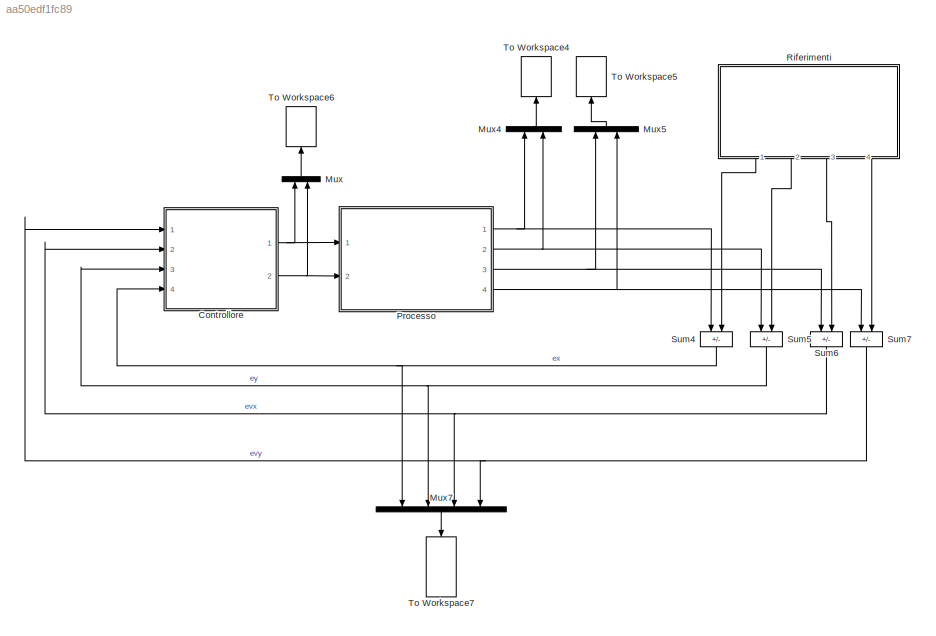
MODEL slx_aa50edf1fc89
KIND model
CONFIG AbsTol = auto
CONFIG EnableMultiTasking = off
CONFIG FixedStep = 1e-3
CONFIG MaxStep = auto
CONFIG MinStep = auto
CONFIG RelTol = 1e-3
CONFIG SampleTimeConstraint = Unconstrained
CONFIG SolverName = FixedStepAuto
CONFIG StartTime = 0.0
CONFIG StopTime = 10.0
WORKSPACE source: mxarray member
WORKSPACE Fa = 500
WORKSPACE Kd = 1200
WORKSPACE Kdomega = 1000
WORKSPACE Kp = 360000
WORKSPACE Kptheta = 250000
WORKSPACE alphap = [-0.326020218955 -0.326023653055 -0.163018777365 -8.60811685263e-06 -6.53899136427e-06 -6.42939276158e-06 -6.73171916785e-06 -7.19217855163e-06 -7.75235029274e-06 -8.39816672132e-06 -9.12997590916e-06 -9.95451750754e-06 ... (306 elements, 1x306)]
WORKSPACE axp = [-2688 -2588.16 -2488.32 -2388.48 -2288.64 -2188.8 -2088.96 -1989.12 -1889.28 -1789.44 -1689.6 -1589.76 ... (357 elements, 1x357)]
WORKSPACE ayp = [-1384 -1331.2 -1278.4 -1225.6 -1172.8 -1120 -1067.2 -1014.4 -961.6 -908.8 -856 -803.2 ... (357 elements, 1x357)]
WORKSPACE inertia = 6.4e-05
WORKSPACE mass = 0.02
WORKSPACE omega0 = 0.65196059971
WORKSPACE omegap = [0.65196059971 0.325940380755 -8.67063996801e-05 -9.71739757485e-05 -0.000103922633385 -0.000110251958477 -0.000116781418909 -0.000123715396813 -0.000131165776012 -0.000139220097398 -0.000147962109454 -0.000157480049217 ... (306 elements, 1x306)]
WORKSPACE step = 0.01
WORKSPACE theta0 = 0
WORKSPACE thetap = [0 0.65196059971 0.651880761509 0.65178718691 0.651686413558 0.651579341644 0.651465909641 0.651345778806 0.651218478847 0.651083447254 0.650940038652 0.650787523035 ... (306 elements, 1x306)]
WORKSPACE v0x = 0
WORKSPACE v0y = 0
WORKSPACE vxp = [0 -26.3808 -51.7632 -76.1472 -99.5328 -121.92 -143.3088 -163.6992 -183.0912 -201.4848 -218.88 -235.2768 ... (357 elements, 1x357)]
WORKSPACE vyp = [0 -13.576 -26.624 -39.144 -51.136 -62.6 -73.536 -83.944 -93.824 -103.176 -112 -120.296 ... (357 elements, 1x357)]
WORKSPACE x0 = 384
WORKSPACE xp = [384 383.93168 383.73024 383.40096 382.94912 382.38 381.69888 380.91104 380.02176 379.03632 377.96 376.79808 ... (357 elements, 1x357)]
WORKSPACE y0 = 384
WORKSPACE yp = [384 383.867264 383.475712 382.835328 381.956096 380.848 379.521024 377.985152 376.250368 374.326656 372.224 369.952384 ... (357 elements, 1x357)]
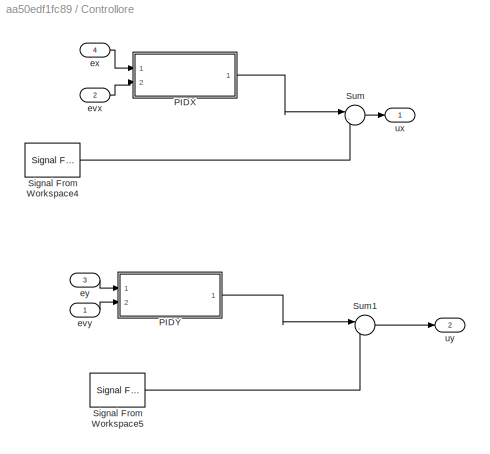
BLOCK [SubSystem] Controllore
  Ports = [4, 2]
  RequestExecContextInheritance = off
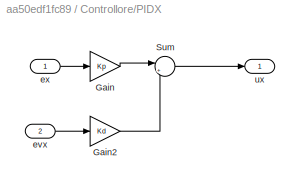
BLOCK [SubSystem] Controllore/PIDX
  Ports = [2, 1]
  RequestExecContextInheritance = off
BLOCK [Gain] Controllore/PIDX/Gain
  Gain = Kp
BLOCK [Gain] Controllore/PIDX/Gain2
  Gain = Kd
BLOCK [Sum] Controllore/PIDX/Sum
  Inputs = |++
  Ports = [2, 1]
BLOCK [Inport] Controllore/PIDX/evx
  Port = 2
BLOCK [Inport] Controllore/PIDX/ex
BLOCK [Outport] Controllore/PIDX/ux
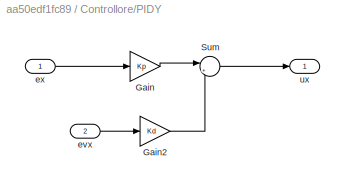
BLOCK [SubSystem] Controllore/PIDY
  Ports = [2, 1]
  RequestExecContextInheritance = off
BLOCK [Gain] Controllore/PIDY/Gain
  Gain = Kp
BLOCK [Gain] Controllore/PIDY/Gain2
  Gain = Kd
BLOCK [Sum] Controllore/PIDY/Sum
  Inputs = |++
  Ports = [2, 1]
BLOCK [Inport] Controllore/PIDY/evx
  Port = 2
BLOCK [Inport] Controllore/PIDY/ex
BLOCK [Outport] Controllore/PIDY/ux
BLOCK [Reference] Controllore/Signal From Workspace4  REF=dspsrcs4/Signal From
Workspace
  Ports = [0, 1]
  SourceBlock = dspsrcs4/Signal From\nWorkspace
  SourceProductBaseCode = DS
  SourceType = Signal From Workspace
BLOCK [Reference] Controllore/Signal From Workspace5  REF=dspsrcs4/Signal From
Workspace
  Ports = [0, 1]
  SourceBlock = dspsrcs4/Signal From\nWorkspace
  SourceProductBaseCode = DS
  SourceType = Signal From Workspace
BLOCK [Sum] Controllore/Sum
  Inputs = |-+
  Ports = [2, 1]
BLOCK [Sum] Controllore/Sum1
  Inputs = |-+
  Ports = [2, 1]
BLOCK [Inport] Controllore/evx
  Port = 2
BLOCK [Inport] Controllore/evy
BLOCK [Inport] Controllore/ex
  Port = 4
BLOCK [Inport] Controllore/ey
  Port = 3
BLOCK [Outport] Controllore/ux
BLOCK [Outport] Controllore/uy
  Port = 2
BLOCK [Mux] Mux
  DisplayOption = bar
  Inputs = 2
  NameLocation = right
  Ports = [2, 1]
BLOCK [Mux] Mux4
  DisplayOption = bar
  Inputs = 2
  NameLocation = right
  Ports = [2, 1]
BLOCK [Mux] Mux5
  DisplayOption = bar
  Inputs = 2
  NameLocation = right
  Ports = [2, 1]
BLOCK [Mux] Mux7
  DisplayOption = bar
  NameLocation = left
  Ports = [4, 1]
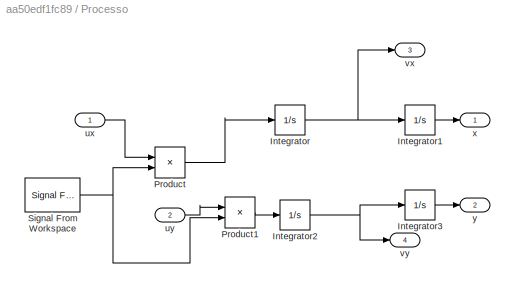
BLOCK [SubSystem] Processo
  Ports = [2, 4]
  RequestExecContextInheritance = off
BLOCK [Integrator] Processo/Integrator
  InitialCondition = v0x
  Ports = [1, 1]
BLOCK [Integrator] Processo/Integrator1
  InitialCondition = x0
  Ports = [1, 1]
BLOCK [Integrator] Processo/Integrator2
  InitialCondition = v0y
  LowerSaturationLimit = -10
  Ports = [1, 1]
  UpperSaturationLimit = 10
BLOCK [Integrator] Processo/Integrator3
  InitialCondition = y0
  Ports = [1, 1]
BLOCK [Product] Processo/Product
  Ports = [2, 1]
BLOCK [Product] Processo/Product1
  Ports = [2, 1]
BLOCK [Reference] Processo/Signal From Workspace  REF=dspsrcs4/Signal From
Workspace
  Ports = [0, 1]
  SourceBlock = dspsrcs4/Signal From\nWorkspace
  SourceProductBaseCode = DS
  SourceType = Signal From Workspace
BLOCK [Inport] Processo/ux
BLOCK [Inport] Processo/uy
  Port = 2
BLOCK [Outport] Processo/vx
  Port = 3
BLOCK [Outport] Processo/vy
  Port = 4
BLOCK [Outport] Processo/x
  PortDimensions = 1
BLOCK [Outport] Processo/y
  Port = 2
  PortDimensions = 1
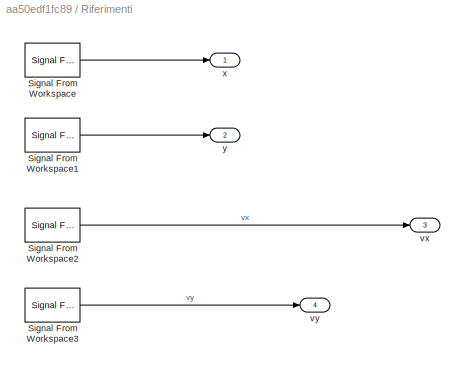
BLOCK [SubSystem] Riferimenti
  NameLocation = left
  Ports = [0, 4]
  RequestExecContextInheritance = off
BLOCK [Reference] Riferimenti/Signal From Workspace  REF=dspsrcs4/Signal From
Workspace
  Ports = [0, 1]
  SourceBlock = dspsrcs4/Signal From\nWorkspace
  SourceProductBaseCode = DS
  SourceType = Signal From Workspace
BLOCK [Reference] Riferimenti/Signal From Workspace1  REF=dspsrcs4/Signal From
Workspace
  Ports = [0, 1]
  SourceBlock = dspsrcs4/Signal From\nWorkspace
  SourceProductBaseCode = DS
  SourceType = Signal From Workspace
BLOCK [Reference] Riferimenti/Signal From Workspace2  REF=dspsrcs4/Signal From
Workspace
  Ports = [0, 1]
  SourceBlock = dspsrcs4/Signal From\nWorkspace
  SourceProductBaseCode = DS
  SourceType = Signal From Workspace
BLOCK [Reference] Riferimenti/Signal From Workspace3  REF=dspsrcs4/Signal From
Workspace
  Ports = [0, 1]
  SourceBlock = dspsrcs4/Signal From\nWorkspace
  SourceProductBaseCode = DS
  SourceType = Signal From Workspace
BLOCK [Outport] Riferimenti/vx
  Port = 3
BLOCK [Outport] Riferimenti/vy
  Port = 4
BLOCK [Outport] Riferimenti/x
BLOCK [Outport] Riferimenti/y
  Port = 2
BLOCK [Sum] Sum4
  IconShape = rectangular
  Inputs = |+-
  NameLocation = left
  Ports = [2, 1]
BLOCK [Sum] Sum5
  IconShape = rectangular
  Inputs = |+-
  NameLocation = left
  Ports = [2, 1]
BLOCK [Sum] Sum6
  IconShape = rectangular
  Inputs = |+-
  NameLocation = left
  Ports = [2, 1]
BLOCK [Sum] Sum7
  IconShape = rectangular
  Inputs = |+-
  NameLocation = left
  Ports = [2, 1]
BLOCK [ToWorkspace] To Workspace4
  FixptAsFi = on
  MaxDataPoints = inf
  NameLocation = right
  Ports = [1]
  SampleTime = -1
  VariableName = p
BLOCK [ToWorkspace] To Workspace5
  FixptAsFi = on
  MaxDataPoints = inf
  NameLocation = right
  Ports = [1]
  SampleTime = -1
  Save2DSignal = 2-D array (concatenate along first dimension)
  VariableName = v
BLOCK [ToWorkspace] To Workspace6
  FixptAsFi = on
  MaxDataPoints = inf
  NameLocation = right
  Ports = [1]
  SampleTime = -1
  VariableName = a
BLOCK [ToWorkspace] To Workspace7
  FixptAsFi = on
  MaxDataPoints = inf
  NameLocation = left
  Ports = [1]
  SampleTime = -1
  VariableName = e
LINE Controllore/PIDX/Gain2:1 -> Controllore/PIDX/Sum:2
LINE Controllore/PIDX/Gain:1 -> Controllore/PIDX/Sum:1
LINE Controllore/PIDX/Sum:1 -> Controllore/PIDX/ux:1
LINE Controllore/PIDX/evx:1 -> Controllore/PIDX/Gain2:1
LINE Controllore/PIDX/ex:1 -> Controllore/PIDX/Gain:1
LINE Controllore/PIDX:1 -> Controllore/Sum:1
LINE Controllore/PIDY/Gain2:1 -> Controllore/PIDY/Sum:2
LINE Controllore/PIDY/Gain:1 -> Controllore/PIDY/Sum:1
LINE Controllore/PIDY/Sum:1 -> Controllore/PIDY/ux:1
LINE Controllore/PIDY/evx:1 -> Controllore/PIDY/Gain2:1
LINE Controllore/PIDY/ex:1 -> Controllore/PIDY/Gain:1
LINE Controllore/PIDY:1 -> Controllore/Sum1:1
LINE Controllore/Signal From Workspace4:1 -> Controllore/Sum:2
LINE Controllore/Signal From Workspace5:1 -> Controllore/Sum1:2
LINE Controllore/Sum1:1 -> Controllore/uy:1
LINE Controllore/Sum:1 -> Controllore/ux:1
LINE Controllore/evx:1 -> Controllore/PIDX:2
LINE Controllore/evy:1 -> Controllore/PIDY:2
LINE Controllore/ex:1 -> Controllore/PIDX:1
LINE Controllore/ey:1 -> Controllore/PIDY:1
NET Controllore:1 -> Mux:1, Processo:1
NET Controllore:2 -> Mux:2, Processo:2
LINE Mux4:1 -> To Workspace4:1
LINE Mux5:1 -> To Workspace5:1
LINE Mux7:1 -> To Workspace7:1
LINE Mux:1 -> To Workspace6:1
LINE Processo/Integrator1:1 -> Processo/x:1
NET Processo/Integrator2:1 -> Processo/Integrator3:1, Processo/vy:1
LINE Processo/Integrator3:1 -> Processo/y:1
NET Processo/Integrator:1 -> Processo/Integrator1:1, Processo/vx:1
LINE Processo/Product1:1 -> Processo/Integrator2:1
LINE Processo/Product:1 -> Processo/Integrator:1
NET Processo/Signal From Workspace:1 -> Processo/Product1:2, Processo/Product:2
LINE Processo/ux:1 -> Processo/Product:1
LINE Processo/uy:1 -> Processo/Product1:1
NET Processo:1 -> Mux4:1, Sum4:1
NET Processo:2 -> Mux4:2, Sum5:1
NET Processo:3 -> Mux5:1, Sum6:1
NET Processo:4 -> Mux5:2, Sum7:1
LINE Riferimenti/Signal From Workspace1:1 -> Riferimenti/y:1
LINE Riferimenti/Signal From Workspace2:1 -> Riferimenti/vx:1
LINE Riferimenti/Signal From Workspace3:1 -> Riferimenti/vy:1
LINE Riferimenti/Signal From Workspace:1 -> Riferimenti/x:1
LINE Riferimenti:1 -> Sum4:2
LINE Riferimenti:2 -> Sum5:2
LINE Riferimenti:3 -> Sum6:2
LINE Riferimenti:4 -> Sum7:2
NET Sum4:1 -> Controllore:4, Mux7:1
NET Sum5:1 -> Controllore:3, Mux7:2
NET Sum6:1 -> Controllore:2, Mux7:3
NET Sum7:1 -> Controllore:1, Mux7:4
note: NET lines group one-source signal fan-out (src -> all destinations, sorted); 1:1 wires keep LINE
